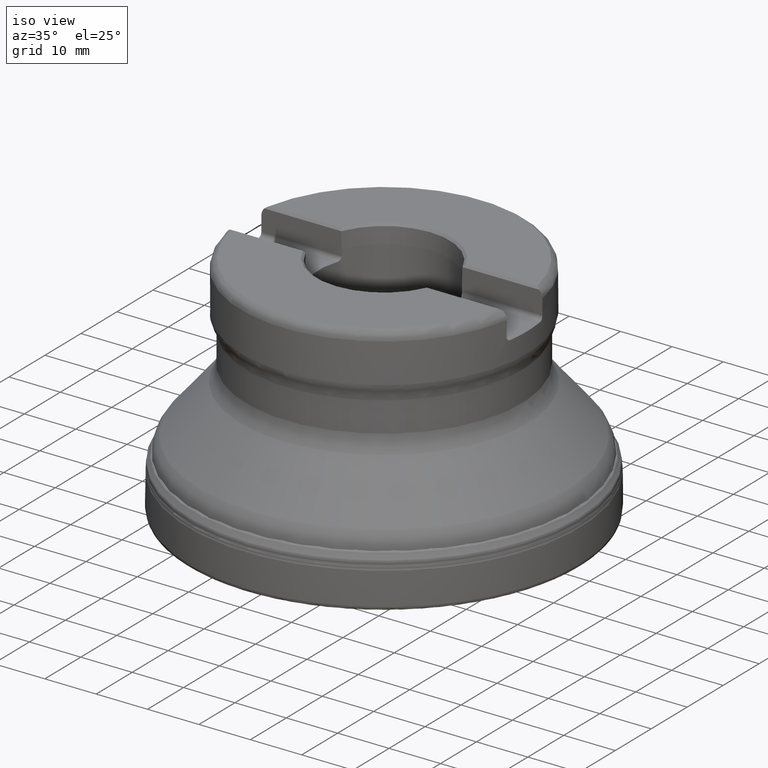
[diagram: clean part render]
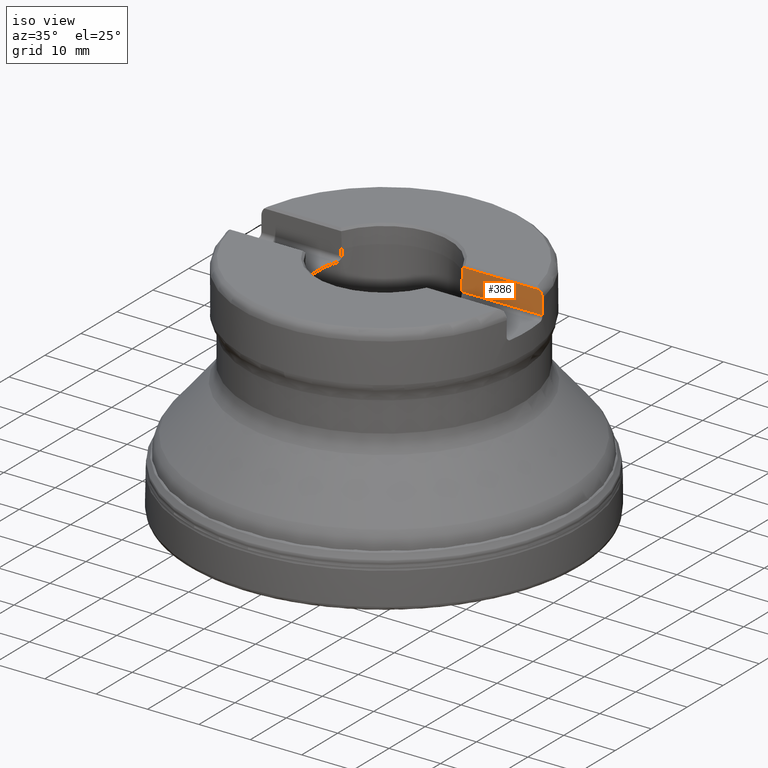
[diagram: same view with one face highlighted and labeled with its STEP entity id]
A machine part, iso view. The second image highlights one B-rep face of the part: STEP entity #386.
In plain terms, the highlighted planar face has unit normal (0, -1, 0).
Its self-contained STEP definition (entity closure, byte-faithful):
#295=PLANE('',#1254);
#308=LINE('',#1942,#335);
#315=LINE('',#1985,#342);
#326=LINE('',#2169,#353);
#328=LINE('',#2213,#355);
#335=VECTOR('',#1335,1.);
#342=VECTOR('',#1370,1.);
#353=VECTOR('',#1443,1.);
#355=VECTOR('',#1459,1.);
#386=ADVANCED_FACE('',(#467),#295,.T.);
#467=FACE_OUTER_BOUND('',#509,.T.);
#509=EDGE_LOOP('',(#772,#773,#774,#775,#776,#777));
#772=ORIENTED_EDGE('',*,*,#1009,.F.);
#773=ORIENTED_EDGE('',*,*,#1021,.T.);
#774=ORIENTED_EDGE('',*,*,#1082,.T.);
#775=ORIENTED_EDGE('',*,*,#1083,.T.);
#776=ORIENTED_EDGE('',*,*,#1075,.T.);
#777=ORIENTED_EDGE('',*,*,#1039,.T.);
#912=VERTEX_POINT('',#1865);
#913=VERTEX_POINT('',#1876);
#923=VERTEX_POINT('',#1941);
#934=VERTEX_POINT('',#1986);
#964=VERTEX_POINT('',#2170);
#968=VERTEX_POINT('',#2212);
#1009=EDGE_CURVE('',#912,#913,#1151,.T.);
#1021=EDGE_CURVE('',#912,#923,#308,.T.);
#1039=EDGE_CURVE('',#934,#913,#315,.T.);
#1075=EDGE_CURVE('',#964,#934,#326,.T.);
#1082=EDGE_CURVE('',#923,#968,#1170,.T.);
#1083=EDGE_CURVE('',#968,#964,#328,.T.);
#1151=B_SPLINE_CURVE_WITH_KNOTS('',3,(#1866,#1867,#1868,#1869,#1870,#1871,
#1872,#1873,#1874,#1875),.UNSPECIFIED.,.F.,.F.,(4,3,3,4),(0.,0.357518559393221,
0.792353957331349,1.),.UNSPECIFIED.);
#1170=B_SPLINE_CURVE_WITH_KNOTS('',3,(#2205,#2206,#2207,#2208,#2209,#2210,
#2211),.UNSPECIFIED.,.F.,.F.,(4,3,4),(0.,0.430247871435624,1.),
 .UNSPECIFIED.);
#1254=AXIS2_PLACEMENT_3D('',#2214,#1460,#1461);
#1335=DIRECTION('',(-1.,0.,0.));
#1370=DIRECTION('',(0.,1.17145536458252E-15,1.));
#1443=DIRECTION('',(1.,0.,0.));
#1459=DIRECTION('',(0.,-1.17145536458252E-15,-1.));
#1460=DIRECTION('',(0.,-1.,9.78708311696212E-16));
#1461=DIRECTION('',(0.,-9.78384040450919E-16,-1.));
#1865=CARTESIAN_POINT('',(26.7717820920193,4.96500000000005,44.0500000000001));
#1866=CARTESIAN_POINT('',(26.7717820920193,4.96500000000005,44.0500000000001));
#1867=CARTESIAN_POINT('',(26.9021083876642,4.96500000000005,43.9192697529322));
#1868=CARTESIAN_POINT('',(27.0153601224892,4.96500000000005,43.7690269520481));
#1869=CARTESIAN_POINT('',(27.1048698716134,4.96500000000005,43.6075854900668));
#1870=CARTESIAN_POINT('',(27.2137039427379,4.96500000000005,43.4112903185617));
#1871=CARTESIAN_POINT('',(27.2898703057431,4.96500000000005,43.193212068401));
#1872=CARTESIAN_POINT('',(27.32655756852,4.96500000000005,42.9717833120398));
#1873=CARTESIAN_POINT('',(27.3441493043409,4.96500000000005,42.8656070565711));
#1874=CARTESIAN_POINT('',(27.3530395934346,4.96500000000005,42.7576237259834));
#1875=CARTESIAN_POINT('',(27.3530395934346,4.96500000000005,42.65));
#1876=CARTESIAN_POINT('',(27.3530395934346,4.96500000000005,42.65));
#1941=CARTESIAN_POINT('',(11.8067842955541,4.96500000000005,44.05));
#1942=CARTESIAN_POINT('',(11.8295106968199,4.96500000000005,44.05));
#1985=CARTESIAN_POINT('',(27.3530395934346,4.96500000000001,-4.8592867675717E-15));
#1986=CARTESIAN_POINT('',(27.3530395934346,4.96500000000004,39.69));
#2169=CARTESIAN_POINT('',(-39.,4.96500000000004,39.69));
#2170=CARTESIAN_POINT('',(11.6892589585482,4.96500000000004,39.69));
#2205=CARTESIAN_POINT('',(11.8067842955541,4.96500000000005,44.05));
#2206=CARTESIAN_POINT('',(11.789941981532,4.96500000000005,43.6054100513555));
#2207=CARTESIAN_POINT('',(11.7730942600819,4.96500000000005,43.1608203075257));
#2208=CARTESIAN_POINT('',(11.7562410611818,4.96500000000005,42.7162307713644));
#2209=CARTESIAN_POINT('',(11.7339233541799,4.96500000000005,42.1274868146249));
#2210=CARTESIAN_POINT('',(11.7115960419743,4.96500000000005,41.5387432219118));
#2211=CARTESIAN_POINT('',(11.6892589585482,4.96500000000005,40.95));
#2212=CARTESIAN_POINT('',(11.6892589585482,4.96500000000005,40.95));
#2213=CARTESIAN_POINT('',(11.6892589585482,4.96500000000005,44.65));
#2214=CARTESIAN_POINT('',(-39.,4.96500000000005,47.89));